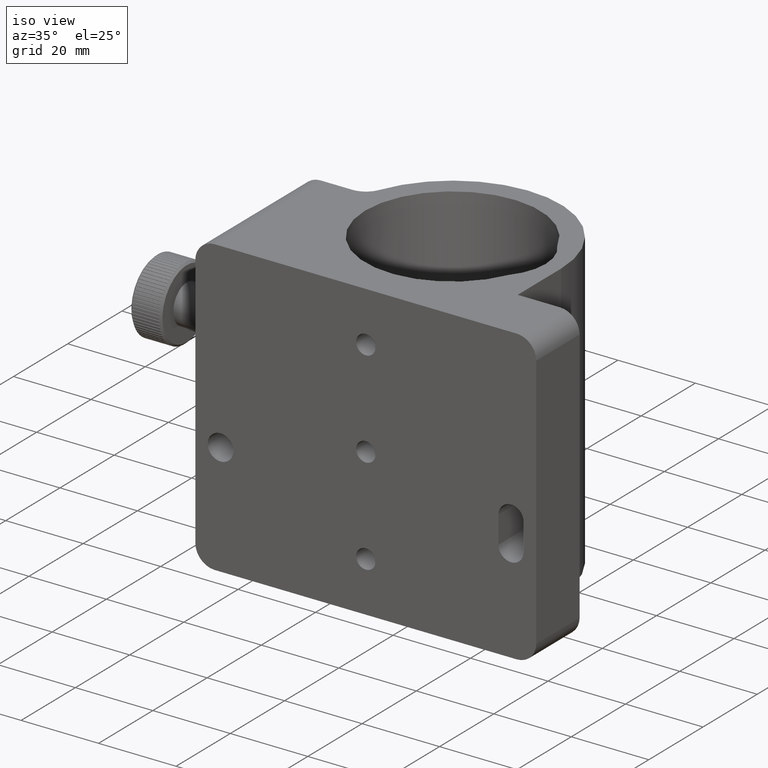
[diagram: clean part render]
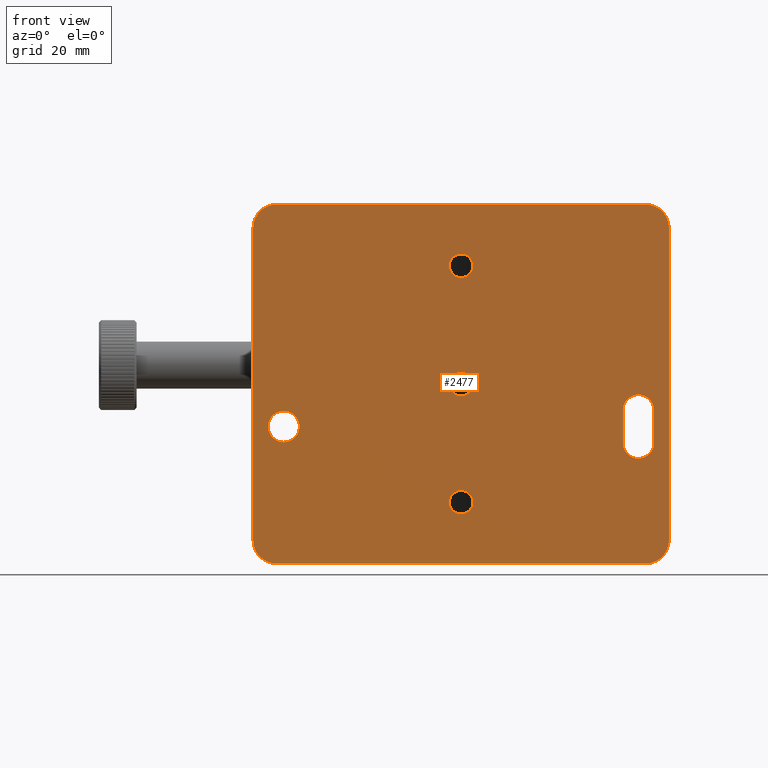
[diagram: tour spotlight — one face highlighted and labeled with its STEP entity id]
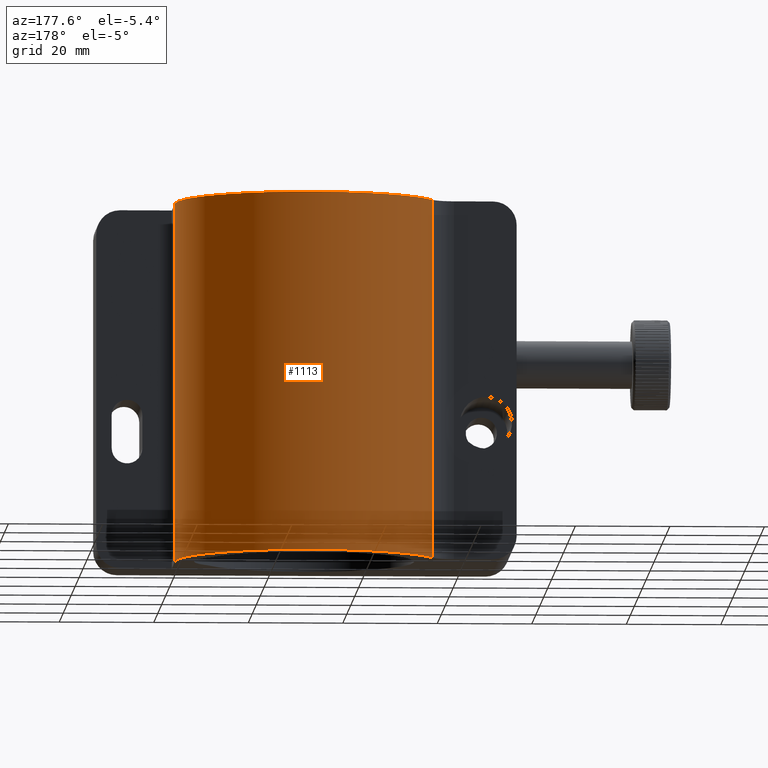
[diagram: tour spotlight — one face highlighted and labeled with its STEP entity id]
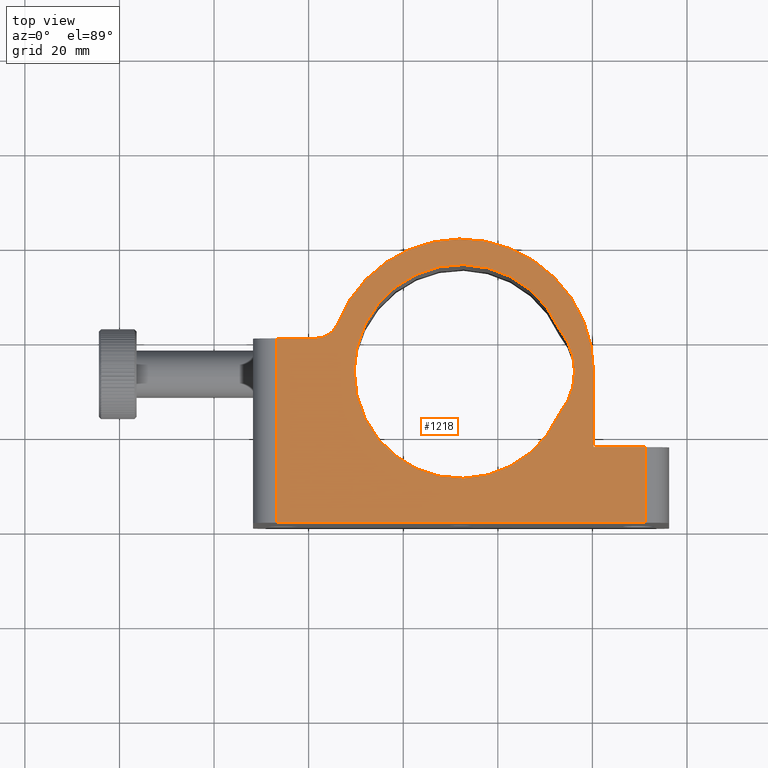
[diagram: tour spotlight — one face highlighted and labeled with its STEP entity id]
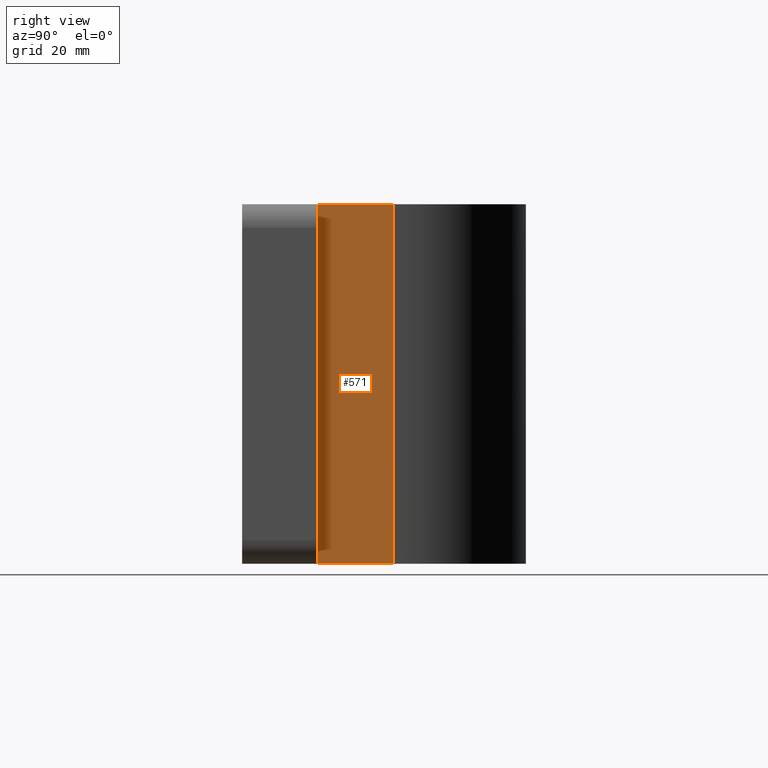
[diagram: tour spotlight — one face highlighted and labeled with its STEP entity id]
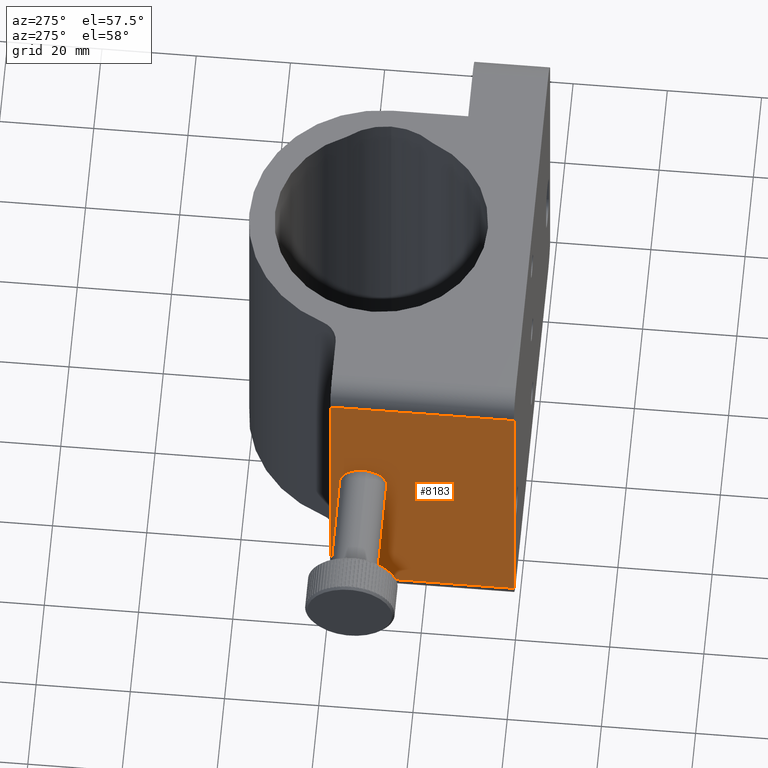
[diagram: tour spotlight — one face highlighted and labeled with its STEP entity id]
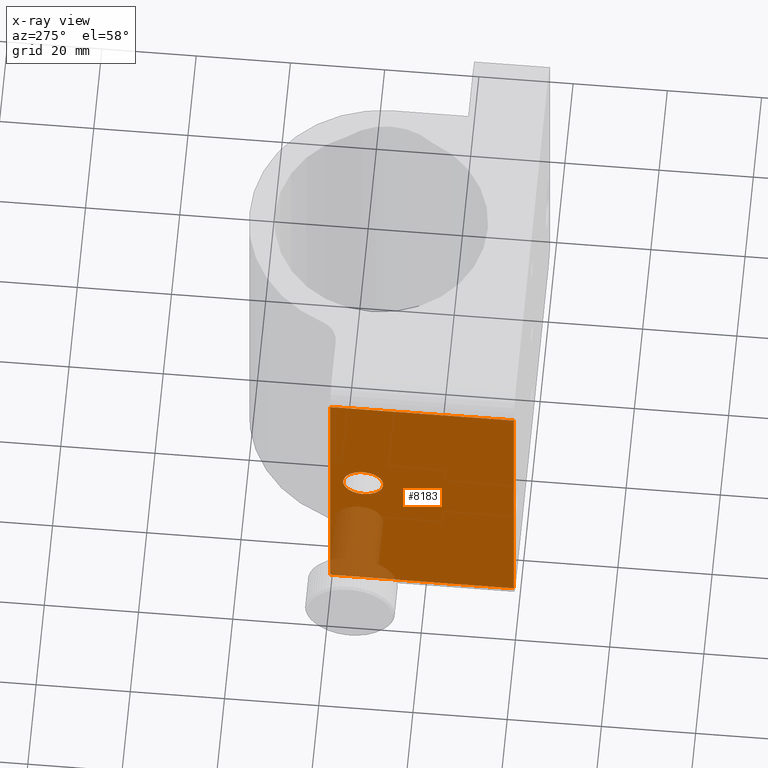
[diagram: x-ray of the same camera — body ghosted, this tour face saturated]
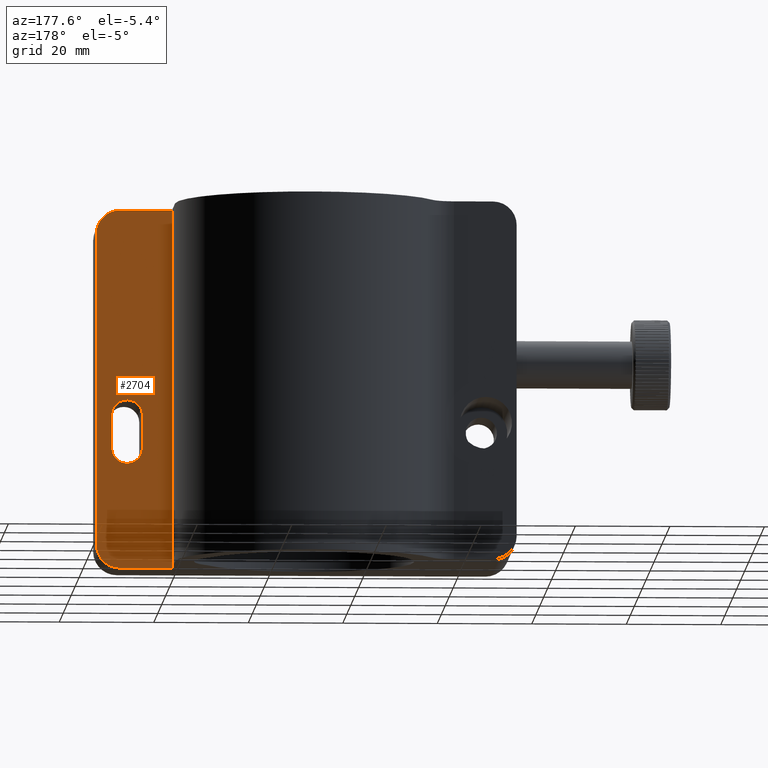
[diagram: tour spotlight — one face highlighted and labeled with its STEP entity id]
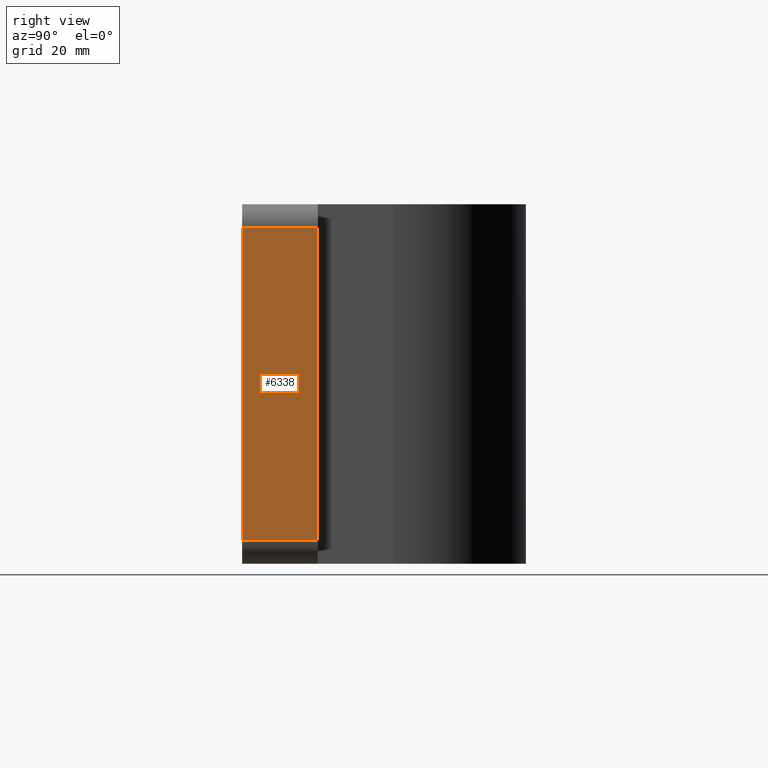
[diagram: tour spotlight — one face highlighted and labeled with its STEP entity id]
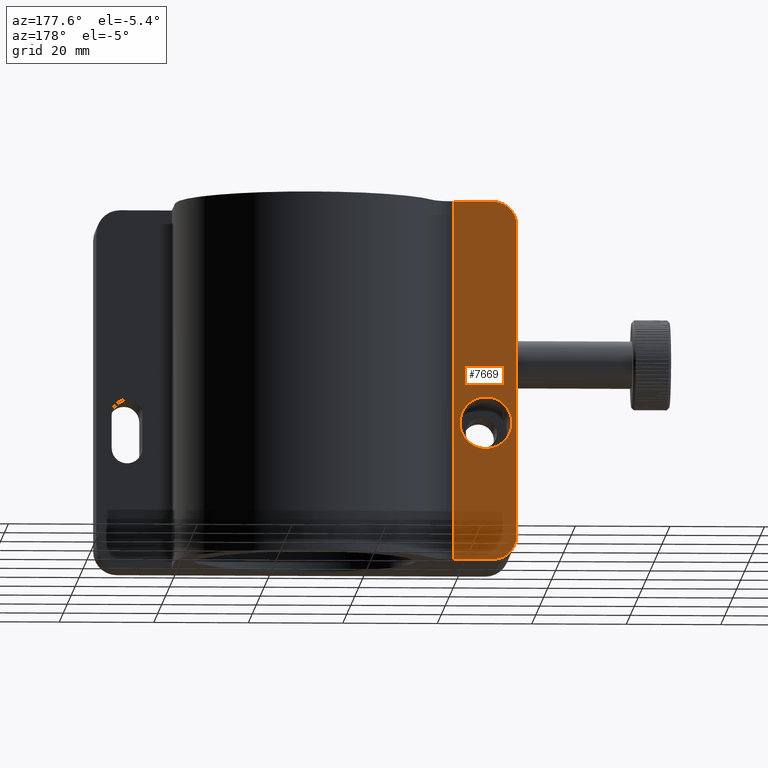
[diagram: tour spotlight — one face highlighted and labeled with its STEP entity id]
A machine part: a face-by-face anatomy tour. The part has 238 B-rep faces; the first image is the clean iso view, then the 8 largest visible faces are spotlighted one at a time (largest first), each with its STEP entity span.

Face 1 — front view, entity #2477. In plain terms, the highlighted planar face has unit normal (0, 1, -0).
Definition (entity closure, byte-faithful):
#1 = AXIS2_PLACEMENT_3D ( 'NONE', #7230, #7892, #8703 ) ;
#9 = EDGE_CURVE ( 'NONE', #5875, #9140, #8021, .T. ) ;
#13 = DIRECTION ( 'NONE',  ( 0.0000000000000000000, 1.000000000000000000, 0.0000000000000000000 ) ) ;
#120 = VERTEX_POINT ( 'NONE', #6336 ) ;
#123 = VECTOR ( 'NONE', #4115, 1000.000000000000000 ) ;
#133 = DIRECTION ( 'NONE',  ( 1.000000000000000000, -1.291895883200182400E-015, -0.0000000000000000000 ) ) ;
#151 = CIRCLE ( 'NONE', #7488, 5.000000000000000000 ) ;
#155 = ORIENTED_EDGE ( 'NONE', *, *, #5562, .F. ) ;
#196 = ORIENTED_EDGE ( 'NONE', *, *, #6700, .F. ) ;
#208 = CARTESIAN_POINT ( 'NONE',  ( 11.23092376484898700, -18.95986378845479700, -38.00000000000000000 ) ) ;
#333 = AXIS2_PLACEMENT_3D ( 'NONE', #8507, #2177, #1464 ) ;
#378 = LINE ( 'NONE', #2830, #7588 ) ;
#412 = ORIENTED_EDGE ( 'NONE', *, *, #3383, .T. ) ;
#431 = DIRECTION ( 'NONE',  ( 0.0000000000000000000, 0.0000000000000000000, -1.000000000000000000 ) ) ;
#478 = DIRECTION ( 'NONE',  ( -0.0000000000000000000, 1.000000000000000000, -0.0000000000000000000 ) ) ;
#502 = FACE_BOUND ( 'NONE', #6076, .T. ) ;
#548 = CARTESIAN_POINT ( 'NONE',  ( 16.23092376484898500, -18.95986378845480000, -38.00000000000000000 ) ) ;
#626 = ORIENTED_EDGE ( 'NONE', *, *, #7252, .T. ) ;
#656 = CARTESIAN_POINT ( 'NONE',  ( -27.76907623515101200, -18.95986378845474700, 2.499999999999999100 ) ) ;
#867 = DIRECTION ( 'NONE',  ( -0.0000000000000000000, -1.000000000000000000, -0.0000000000000000000 ) ) ;
#897 = ORIENTED_EDGE ( 'NONE', *, *, #8057, .F. ) ;
#917 = EDGE_CURVE ( 'NONE', #2626, #5854, #1349, .T. ) ;
#961 = AXIS2_PLACEMENT_3D ( 'NONE', #1890, #4672, #7515 ) ;
#964 = ORIENTED_EDGE ( 'NONE', *, *, #8224, .T. ) ;
#984 = ORIENTED_EDGE ( 'NONE', *, *, #6416, .T. ) ;
#1176 = VERTEX_POINT ( 'NONE', #4359 ) ;
#1237 = DIRECTION ( 'NONE',  ( -9.912705577010322600E-016, -0.0000000000000000000, -1.000000000000000000 ) ) ;
#1349 = CIRCLE ( 'NONE', #1573, 5.000000000000004400 ) ;
#1407 = ORIENTED_EDGE ( 'NONE', *, *, #5090, .F. ) ;
#1464 = DIRECTION ( 'NONE',  ( -1.000000000000000000, 1.291895883200182400E-015, 0.0000000000000000000 ) ) ;
#1466 = CARTESIAN_POINT ( 'NONE',  ( -27.76907623515101200, -18.95986378845474700, -27.50000000000000000 ) ) ;
#1475 = LINE ( 'NONE', #3725, #6007 ) ;
#1486 = EDGE_CURVE ( 'NONE', #3391, #4930, #8657, .T. ) ;
#1490 = CARTESIAN_POINT ( 'NONE',  ( 6.480923764848989200, -18.95986378845479000, -5.499999999999998200 ) ) ;
#1510 = DIRECTION ( 'NONE',  ( -1.000000000000000000, 1.387778780781445700E-015, 1.387778780781445700E-015 ) ) ;
#1526 = DIRECTION ( 'NONE',  ( 0.0000000000000000000, 0.0000000000000000000, -1.000000000000000000 ) ) ;
#1573 = AXIS2_PLACEMENT_3D ( 'NONE', #8287, #6903, #4069 ) ;
#1577 = EDGE_CURVE ( 'NONE', #2391, #3913, #4101, .T. ) ;
#1582 = DIRECTION ( 'NONE',  ( 0.0000000000000000000, 0.0000000000000000000, -1.000000000000000000 ) ) ;
#1588 = DIRECTION ( 'NONE',  ( -0.0000000000000000000, -0.0000000000000000000, -1.000000000000000000 ) ) ;
#1667 = VERTEX_POINT ( 'NONE', #1466 ) ;
#1685 = CARTESIAN_POINT ( 'NONE',  ( -65.26907623515117500, -18.95986378845513400, -5.700000000000010800 ) ) ;
#1686 = EDGE_CURVE ( 'NONE', #2626, #9140, #3451, .T. ) ;
#1710 = CIRCLE ( 'NONE', #6688, 2.499999999999998700 ) ;
#1717 = ORIENTED_EDGE ( 'NONE', *, *, #1577, .T. ) ;
#1729 = CARTESIAN_POINT ( 'NONE',  ( 12.98092376484898800, -18.95986378845513400, -12.50000000000000000 ) ) ;
#1826 = EDGE_CURVE ( 'NONE', #3711, #2135, #8558, .T. ) ;
#1890 = CARTESIAN_POINT ( 'NONE',  ( 9.730923764848984800, -18.95986378845513400, -12.50000000000000000 ) ) ;
#1936 = CARTESIAN_POINT ( 'NONE',  ( 11.23092376484898700, -18.95986378845479300, 33.00000000000000000 ) ) ;
#1946 = CARTESIAN_POINT ( 'NONE',  ( -65.26907623515117500, -18.95986378845513400, -9.000000000000001800 ) ) ;
#2027 = VERTEX_POINT ( 'NONE', #7579 ) ;
#2048 = DIRECTION ( 'NONE',  ( -1.291895883200182400E-015, -1.000000000000000000, 0.0000000000000000000 ) ) ;
#2135 = VERTEX_POINT ( 'NONE', #656 ) ;
#2154 = CARTESIAN_POINT ( 'NONE',  ( -27.76907623515101200, -18.95986378845474700, 27.50000000000000000 ) ) ;
#2177 = DIRECTION ( 'NONE',  ( 1.291895883200182400E-015, 1.000000000000000000, -0.0000000000000000000 ) ) ;
#2189 = CARTESIAN_POINT ( 'NONE',  ( -27.76907623515101200, -18.95986378845474700, 0.0000000000000000000 ) ) ;
#2258 = DIRECTION ( 'NONE',  ( 0.0000000000000000000, 0.0000000000000000000, 1.000000000000000000 ) ) ;
#2283 = AXIS2_PLACEMENT_3D ( 'NONE', #4397, #3053, #7942 ) ;
#2324 = CARTESIAN_POINT ( 'NONE',  ( -71.76907623515100500, -18.95986378845469000, 33.00000000000000000 ) ) ;
#2391 = VERTEX_POINT ( 'NONE', #6787 ) ;
#2396 = FACE_BOUND ( 'NONE', #5275, .T. ) ;
#2477 = ADVANCED_FACE ( 'NONE', ( #8258, #2396, #6395, #502, #3390, #8140 ), #6407, .F. ) ;
#2550 = CARTESIAN_POINT ( 'NONE',  ( 11.23092376484898700, -18.95986378845479700, 38.00000000000000000 ) ) ;
#2556 = DIRECTION ( 'NONE',  ( -1.291895883200182400E-015, -1.000000000000000000, 0.0000000000000000000 ) ) ;
#2596 = CIRCLE ( 'NONE', #7008, 3.250000000000002700 ) ;
#2626 = VERTEX_POINT ( 'NONE', #3530 ) ;
#2653 = DIRECTION ( 'NONE',  ( -1.000000000000000000, 1.387778780781445700E-015, 0.0000000000000000000 ) ) ;
#2830 = CARTESIAN_POINT ( 'NONE',  ( 12.98092376484898800, -18.95986378845513400, -12.50000000000000000 ) ) ;
#2883 = DIRECTION ( 'NONE',  ( 0.0000000000000000000, 0.0000000000000000000, -1.000000000000000000 ) ) ;
#2953 = ORIENTED_EDGE ( 'NONE', *, *, #9, .T. ) ;
#3025 = CARTESIAN_POINT ( 'NONE',  ( -27.76907623515101200, -18.95986378845474700, 25.00000000000000000 ) ) ;
#3053 = DIRECTION ( 'NONE',  ( -0.0000000000000000000, -1.000000000000000000, -0.0000000000000000000 ) ) ;
#3094 = CARTESIAN_POINT ( 'NONE',  ( -66.76907623515101900, -18.95986378845469700, -33.00000000000000700 ) ) ;
#3098 = EDGE_CURVE ( 'NONE', #1176, #1667, #1710, .T. ) ;
#3276 = DIRECTION ( 'NONE',  ( -0.0000000000000000000, -1.000000000000000000, -0.0000000000000000000 ) ) ;
#3278 = EDGE_LOOP ( 'NONE', ( #8931, #984, #626, #7777, #6661, #2953, #3755, #5025 ) ) ;
#3383 = EDGE_CURVE ( 'NONE', #4930, #120, #2596, .T. ) ;
#3390 = FACE_BOUND ( 'NONE', #6282, .T. ) ;
#3391 = VERTEX_POINT ( 'NONE', #8502 ) ;
#3401 = DIRECTION ( 'NONE',  ( 1.000000000000000000, -1.291895883200182400E-015, -0.0000000000000000000 ) ) ;
#3451 = LINE ( 'NONE', #8714, #4996 ) ;
#3491 = EDGE_CURVE ( 'NONE', #120, #8791, #4014, .T. ) ;
#3530 = CARTESIAN_POINT ( 'NONE',  ( -66.76907623515100500, -18.95986378845469400, 38.00000000000000000 ) ) ;
#3676 = DIRECTION ( 'NONE',  ( 0.0000000000000000000, 0.0000000000000000000, -1.000000000000000000 ) ) ;
#3711 = VERTEX_POINT ( 'NONE', #8389 ) ;
#3725 = CARTESIAN_POINT ( 'NONE',  ( 16.23092376484898500, -18.95986378845480000, 38.00000000000000000 ) ) ;
#3733 = AXIS2_PLACEMENT_3D ( 'NONE', #2189, #9175, #2883 ) ;
#3755 = ORIENTED_EDGE ( 'NONE', *, *, #1686, .F. ) ;
#3784 = CIRCLE ( 'NONE', #4439, 2.499999999999998700 ) ;
#3913 = VERTEX_POINT ( 'NONE', #1685 ) ;
#3938 = EDGE_LOOP ( 'NONE', ( #897, #196 ) ) ;
#4014 = CIRCLE ( 'NONE', #1, 3.250000000000002700 ) ;
#4069 = DIRECTION ( 'NONE',  ( -1.000000000000000000, 1.387778780781444500E-015, 1.387778780781444500E-015 ) ) ;
#4101 = CIRCLE ( 'NONE', #7955, 3.299999999999990500 ) ;
#4107 = VERTEX_POINT ( 'NONE', #1729 ) ;
#4114 = ORIENTED_EDGE ( 'NONE', *, *, #1486, .T. ) ;
#4115 = DIRECTION ( 'NONE',  ( 9.912705577010322600E-016, 0.0000000000000000000, 1.000000000000000000 ) ) ;
#4144 = CIRCLE ( 'NONE', #3733, 2.499999999999999100 ) ;
#4202 = CARTESIAN_POINT ( 'NONE',  ( 6.480923764848982100, -18.95986378845513400, -12.50000000000000000 ) ) ;
#4229 = CARTESIAN_POINT ( 'NONE',  ( 9.730923764848984800, -18.95986378845513400, -5.499999999999998200 ) ) ;
#4280 = VERTEX_POINT ( 'NONE', #2154 ) ;
#4315 = AXIS2_PLACEMENT_3D ( 'NONE', #7307, #8004, #1526 ) ;
#4359 = CARTESIAN_POINT ( 'NONE',  ( -27.76907623515101200, -18.95986378845474700, -22.50000000000000400 ) ) ;
#4397 = CARTESIAN_POINT ( 'NONE',  ( -27.76907623515101200, -18.95986378845474700, 0.0000000000000000000 ) ) ;
#4399 = AXIS2_PLACEMENT_3D ( 'NONE', #1946, #478, #8968 ) ;
#4439 = AXIS2_PLACEMENT_3D ( 'NONE', #3025, #5072, #3676 ) ;
#4477 = ORIENTED_EDGE ( 'NONE', *, *, #7203, .T. ) ;
#4641 = AXIS2_PLACEMENT_3D ( 'NONE', #3094, #8743, #7364 ) ;
#4672 = DIRECTION ( 'NONE',  ( 0.0000000000000000000, 1.000000000000000000, 0.0000000000000000000 ) ) ;
#4688 = CARTESIAN_POINT ( 'NONE',  ( 12.98092376484899500, -18.95986378845513400, -5.499999999999998200 ) ) ;
#4828 = EDGE_LOOP ( 'NONE', ( #1407, #5075 ) ) ;
#4845 = CARTESIAN_POINT ( 'NONE',  ( 11.23092376484898700, -18.95986378845479300, -33.00000000000000700 ) ) ;
#4930 = VERTEX_POINT ( 'NONE', #1490 ) ;
#4996 = VECTOR ( 'NONE', #133, 1000.000000000000000 ) ;
#5019 = CARTESIAN_POINT ( 'NONE',  ( 16.23092376484898500, -18.95986378845480000, 33.00000000000000000 ) ) ;
#5025 = ORIENTED_EDGE ( 'NONE', *, *, #917, .T. ) ;
#5072 = DIRECTION ( 'NONE',  ( -0.0000000000000000000, -1.000000000000000000, -0.0000000000000000000 ) ) ;
#5075 = ORIENTED_EDGE ( 'NONE', *, *, #3098, .F. ) ;
#5090 = EDGE_CURVE ( 'NONE', #1667, #1176, #6125, .T. ) ;
#5159 = VERTEX_POINT ( 'NONE', #8761 ) ;
#5245 = CIRCLE ( 'NONE', #4641, 5.000000000000004400 ) ;
#5275 = EDGE_LOOP ( 'NONE', ( #5716, #155 ) ) ;
#5282 = VERTEX_POINT ( 'NONE', #6160 ) ;
#5478 = VECTOR ( 'NONE', #8350, 1000.000000000000000 ) ;
#5562 = EDGE_CURVE ( 'NONE', #2135, #3711, #4144, .T. ) ;
#5673 = DIRECTION ( 'NONE',  ( 0.0000000000000000000, 0.0000000000000000000, 1.000000000000000000 ) ) ;
#5716 = ORIENTED_EDGE ( 'NONE', *, *, #1826, .F. ) ;
#5743 = CARTESIAN_POINT ( 'NONE',  ( -65.26907623515117500, -18.95986378845513400, -9.000000000000001800 ) ) ;
#5807 = LINE ( 'NONE', #548, #8227 ) ;
#5854 = VERTEX_POINT ( 'NONE', #2324 ) ;
#5875 = VERTEX_POINT ( 'NONE', #5019 ) ;
#6007 = VECTOR ( 'NONE', #1588, 1000.000000000000000 ) ;
#6076 = EDGE_LOOP ( 'NONE', ( #8840, #964, #4114, #412, #7724 ) ) ;
#6125 = CIRCLE ( 'NONE', #4315, 2.499999999999998700 ) ;
#6160 = CARTESIAN_POINT ( 'NONE',  ( -66.76907623515100500, -18.95986378845469400, -38.00000000000000000 ) ) ;
#6168 = EDGE_CURVE ( 'NONE', #8791, #4107, #378, .T. ) ;
#6282 = EDGE_LOOP ( 'NONE', ( #4477, #1717 ) ) ;
#6336 = CARTESIAN_POINT ( 'NONE',  ( 9.730923764848984800, -18.95986378845513400, -2.249999999999995100 ) ) ;
#6388 = AXIS2_PLACEMENT_3D ( 'NONE', #1936, #2556, #2653 ) ;
#6395 = FACE_BOUND ( 'NONE', #4828, .T. ) ;
#6407 = PLANE ( 'NONE',  #333 ) ;
#6416 = EDGE_CURVE ( 'NONE', #2027, #5282, #5245, .T. ) ;
#6595 = CIRCLE ( 'NONE', #8694, 2.499999999999998700 ) ;
#6661 = ORIENTED_EDGE ( 'NONE', *, *, #9023, .F. ) ;
#6688 = AXIS2_PLACEMENT_3D ( 'NONE', #6912, #3276, #431 ) ;
#6700 = EDGE_CURVE ( 'NONE', #4280, #5159, #6595, .T. ) ;
#6787 = CARTESIAN_POINT ( 'NONE',  ( -65.26907623515117500, -18.95986378845513400, -12.29999999999999200 ) ) ;
#6900 = EDGE_CURVE ( 'NONE', #5854, #2027, #7580, .T. ) ;
#6903 = DIRECTION ( 'NONE',  ( -1.291895883200182400E-015, -1.000000000000000000, 0.0000000000000000000 ) ) ;
#6912 = CARTESIAN_POINT ( 'NONE',  ( -27.76907623515101200, -18.95986378845474700, -25.00000000000000000 ) ) ;
#7008 = AXIS2_PLACEMENT_3D ( 'NONE', #4229, #13, #5673 ) ;
#7041 = CIRCLE ( 'NONE', #4399, 3.299999999999990500 ) ;
#7150 = CIRCLE ( 'NONE', #961, 3.250000000000002700 ) ;
#7203 = EDGE_CURVE ( 'NONE', #3913, #2391, #7041, .T. ) ;
#7230 = CARTESIAN_POINT ( 'NONE',  ( 9.730923764848984800, -18.95986378845513400, -5.499999999999998200 ) ) ;
#7252 = EDGE_CURVE ( 'NONE', #5282, #8008, #5807, .T. ) ;
#7307 = CARTESIAN_POINT ( 'NONE',  ( -27.76907623515101200, -18.95986378845474700, -25.00000000000000000 ) ) ;
#7364 = DIRECTION ( 'NONE',  ( -1.000000000000000000, 1.387778780781444500E-015, 0.0000000000000000000 ) ) ;
#7369 = EDGE_CURVE ( 'NONE', #8008, #8047, #151, .T. ) ;
#7488 = AXIS2_PLACEMENT_3D ( 'NONE', #4845, #2048, #1510 ) ;
#7515 = DIRECTION ( 'NONE',  ( 0.0000000000000000000, 0.0000000000000000000, 1.000000000000000000 ) ) ;
#7579 = CARTESIAN_POINT ( 'NONE',  ( -71.76907623515100500, -18.95986378845469000, -33.00000000000000700 ) ) ;
#7580 = LINE ( 'NONE', #9136, #5478 ) ;
#7588 = VECTOR ( 'NONE', #1237, 1000.000000000000000 ) ;
#7724 = ORIENTED_EDGE ( 'NONE', *, *, #3491, .T. ) ;
#7777 = ORIENTED_EDGE ( 'NONE', *, *, #7369, .T. ) ;
#7890 = CARTESIAN_POINT ( 'NONE',  ( -27.76907623515101200, -18.95986378845474700, 25.00000000000000000 ) ) ;
#7892 = DIRECTION ( 'NONE',  ( 0.0000000000000000000, 1.000000000000000000, 0.0000000000000000000 ) ) ;
#7942 = DIRECTION ( 'NONE',  ( 0.0000000000000000000, 0.0000000000000000000, -1.000000000000000000 ) ) ;
#7955 = AXIS2_PLACEMENT_3D ( 'NONE', #5743, #8593, #2258 ) ;
#8004 = DIRECTION ( 'NONE',  ( -0.0000000000000000000, -1.000000000000000000, -0.0000000000000000000 ) ) ;
#8006 = CARTESIAN_POINT ( 'NONE',  ( 16.23092376484898500, -18.95986378845480000, -33.00000000000000700 ) ) ;
#8008 = VERTEX_POINT ( 'NONE', #208 ) ;
#8021 = CIRCLE ( 'NONE', #6388, 5.000000000000000000 ) ;
#8047 = VERTEX_POINT ( 'NONE', #8006 ) ;
#8057 = EDGE_CURVE ( 'NONE', #5159, #4280, #3784, .T. ) ;
#8140 = FACE_OUTER_BOUND ( 'NONE', #3278, .T. ) ;
#8224 = EDGE_CURVE ( 'NONE', #4107, #3391, #7150, .T. ) ;
#8227 = VECTOR ( 'NONE', #3401, 1000.000000000000000 ) ;
#8258 = FACE_BOUND ( 'NONE', #3938, .T. ) ;
#8287 = CARTESIAN_POINT ( 'NONE',  ( -66.76907623515101900, -18.95986378845469700, 33.00000000000000000 ) ) ;
#8350 = DIRECTION ( 'NONE',  ( -0.0000000000000000000, -0.0000000000000000000, -1.000000000000000000 ) ) ;
#8389 = CARTESIAN_POINT ( 'NONE',  ( -27.76907623515101200, -18.95986378845474700, -2.499999999999999100 ) ) ;
#8502 = CARTESIAN_POINT ( 'NONE',  ( 6.480923764848982100, -18.95986378845513400, -12.50000000000000000 ) ) ;
#8507 = CARTESIAN_POINT ( 'NONE',  ( 16.23092376484898500, -18.95986378845480000, 38.00000000000000000 ) ) ;
#8558 = CIRCLE ( 'NONE', #2283, 2.499999999999999100 ) ;
#8593 = DIRECTION ( 'NONE',  ( -0.0000000000000000000, 1.000000000000000000, -0.0000000000000000000 ) ) ;
#8657 = LINE ( 'NONE', #4202, #123 ) ;
#8694 = AXIS2_PLACEMENT_3D ( 'NONE', #7890, #867, #1582 ) ;
#8703 = DIRECTION ( 'NONE',  ( 0.0000000000000000000, 0.0000000000000000000, 1.000000000000000000 ) ) ;
#8714 = CARTESIAN_POINT ( 'NONE',  ( 16.23092376484898500, -18.95986378845480000, 38.00000000000000000 ) ) ;
#8743 = DIRECTION ( 'NONE',  ( -1.291895883200182400E-015, -1.000000000000000000, 0.0000000000000000000 ) ) ;
#8761 = CARTESIAN_POINT ( 'NONE',  ( -27.76907623515101200, -18.95986378845474700, 22.50000000000000400 ) ) ;
#8791 = VERTEX_POINT ( 'NONE', #4688 ) ;
#8840 = ORIENTED_EDGE ( 'NONE', *, *, #6168, .T. ) ;
#8931 = ORIENTED_EDGE ( 'NONE', *, *, #6900, .T. ) ;
#8968 = DIRECTION ( 'NONE',  ( 0.0000000000000000000, 0.0000000000000000000, 1.000000000000000000 ) ) ;
#9023 = EDGE_CURVE ( 'NONE', #5875, #8047, #1475, .T. ) ;
#9136 = CARTESIAN_POINT ( 'NONE',  ( -71.76907623515100500, -18.95986378845469000, 38.00000000000000000 ) ) ;
#9140 = VERTEX_POINT ( 'NONE', #2550 ) ;
#9175 = DIRECTION ( 'NONE',  ( -0.0000000000000000000, -1.000000000000000000, -0.0000000000000000000 ) ) ;

Face 2 — auxiliary view, entity #1113. In plain terms, the highlighted cylindrical surface (partial cylindrical patch) has radius 28 mm, axis along (-0, -0, -1).
Definition (entity closure, byte-faithful):
#221 = DIRECTION ( 'NONE',  ( -0.0000000000000000000, -0.0000000000000000000, -1.000000000000000000 ) ) ;
#463 = CARTESIAN_POINT ( 'NONE',  ( 0.2309237648489871600, 13.04013621154520000, 38.00000000000000000 ) ) ;
#684 = FACE_OUTER_BOUND ( 'NONE', #1820, .T. ) ;
#1113 = ADVANCED_FACE ( 'NONE', ( #684 ), #5670, .T. ) ;
#1211 = DIRECTION ( 'NONE',  ( 0.0000000000000000000, 0.0000000000000000000, 1.000000000000000000 ) ) ;
#1378 = EDGE_CURVE ( 'NONE', #7614, #8425, #2024, .T. ) ;
#1400 = AXIS2_PLACEMENT_3D ( 'NONE', #8748, #4472, #5918 ) ;
#1820 = EDGE_LOOP ( 'NONE', ( #4950, #6913, #8078, #2821 ) ) ;
#2024 = LINE ( 'NONE', #7555, #6226 ) ;
#2421 = VERTEX_POINT ( 'NONE', #463 ) ;
#2821 = ORIENTED_EDGE ( 'NONE', *, *, #8658, .T. ) ;
#3308 = CARTESIAN_POINT ( 'NONE',  ( 0.2309237648489871600, 13.04013621154520000, -38.00000000000000000 ) ) ;
#3977 = DIRECTION ( 'NONE',  ( 0.0000000000000000000, 0.0000000000000000000, 1.000000000000000000 ) ) ;
#4472 = DIRECTION ( 'NONE',  ( 0.0000000000000000000, 0.0000000000000000000, 1.000000000000000000 ) ) ;
#4552 = CIRCLE ( 'NONE', #6647, 28.00000000000000000 ) ;
#4569 = CARTESIAN_POINT ( 'NONE',  ( 0.2309237648489871600, 13.04013621154520000, 38.00000000000000000 ) ) ;
#4718 = EDGE_CURVE ( 'NONE', #2421, #8425, #4552, .T. ) ;
#4950 = ORIENTED_EDGE ( 'NONE', *, *, #5981, .T. ) ;
#5470 = CARTESIAN_POINT ( 'NONE',  ( -53.85222363941175400, 23.22195439336351800, 38.00000000000000000 ) ) ;
#5587 = AXIS2_PLACEMENT_3D ( 'NONE', #6497, #5721, #5775 ) ;
#5670 = CYLINDRICAL_SURFACE ( 'NONE', #5587, 27.99999999999999600 ) ;
#5721 = DIRECTION ( 'NONE',  ( -0.0000000000000000000, -0.0000000000000000000, -1.000000000000000000 ) ) ;
#5775 = DIRECTION ( 'NONE',  ( -1.000000000000000000, 0.0000000000000000000, 0.0000000000000000000 ) ) ;
#5918 = DIRECTION ( 'NONE',  ( 1.000000000000000000, 0.0000000000000000000, 0.0000000000000000000 ) ) ;
#5981 = EDGE_CURVE ( 'NONE', #8280, #7614, #8134, .T. ) ;
#6226 = VECTOR ( 'NONE', #1211, 1000.000000000000000 ) ;
#6256 = VECTOR ( 'NONE', #221, 1000.000000000000000 ) ;
#6497 = CARTESIAN_POINT ( 'NONE',  ( -27.76907623515101200, 13.04013621154520000, 38.00000000000000000 ) ) ;
#6647 = AXIS2_PLACEMENT_3D ( 'NONE', #8143, #3977, #8863 ) ;
#6740 = CARTESIAN_POINT ( 'NONE',  ( -53.85222363941175400, 23.22195439336351800, -38.00000000000000000 ) ) ;
#6913 = ORIENTED_EDGE ( 'NONE', *, *, #1378, .T. ) ;
#7555 = CARTESIAN_POINT ( 'NONE',  ( -53.85222363941175400, 23.22195439336351800, 38.00000000000000000 ) ) ;
#7614 = VERTEX_POINT ( 'NONE', #6740 ) ;
#8078 = ORIENTED_EDGE ( 'NONE', *, *, #4718, .F. ) ;
#8134 = CIRCLE ( 'NONE', #1400, 28.00000000000000000 ) ;
#8143 = CARTESIAN_POINT ( 'NONE',  ( -27.76907623515101200, 13.04013621154520000, 38.00000000000000000 ) ) ;
#8280 = VERTEX_POINT ( 'NONE', #3308 ) ;
#8344 = LINE ( 'NONE', #4569, #6256 ) ;
#8425 = VERTEX_POINT ( 'NONE', #5470 ) ;
#8658 = EDGE_CURVE ( 'NONE', #2421, #8280, #8344, .T. ) ;
#8748 = CARTESIAN_POINT ( 'NONE',  ( -27.76907623515101200, 13.04013621154520000, -38.00000000000000000 ) ) ;
#8863 = DIRECTION ( 'NONE',  ( 1.000000000000000000, 0.0000000000000000000, 0.0000000000000000000 ) ) ;

Face 3 — top view, entity #1218. In plain terms, the highlighted planar face has unit normal (0, 0, 1).
Definition (entity closure, byte-faithful):
#5 = CARTESIAN_POINT ( 'NONE',  ( -66.76907623515101900, -18.95986378845469000, 38.00000000000000000 ) ) ;
#133 = DIRECTION ( 'NONE',  ( 1.000000000000000000, -1.291895883200182400E-015, -0.0000000000000000000 ) ) ;
#161 = DIRECTION ( 'NONE',  ( -1.000000000000000000, -4.108500212226867900E-015, 0.0000000000000000000 ) ) ;
#166 = VECTOR ( 'NONE', #4717, 1000.000000000000000 ) ;
#259 = CIRCLE ( 'NONE', #7821, 22.59999999999999800 ) ;
#463 = CARTESIAN_POINT ( 'NONE',  ( 0.2309237648489871600, 13.04013621154520000, 38.00000000000000000 ) ) ;
#712 = DIRECTION ( 'NONE',  ( 0.0000000000000000000, -1.000000000000000000, 0.0000000000000000000 ) ) ;
#885 = VERTEX_POINT ( 'NONE', #6867 ) ;
#954 = CARTESIAN_POINT ( 'NONE',  ( 16.23092376484898500, -2.959863788454801400, 38.00000000000000000 ) ) ;
#962 = DIRECTION ( 'NONE',  ( 1.000000000000000000, 0.0000000000000000000, 0.0000000000000000000 ) ) ;
#1218 = ADVANCED_FACE ( 'NONE', ( #6240, #5785 ), #2327, .T. ) ;
#1322 = DIRECTION ( 'NONE',  ( 1.000000000000000000, 0.0000000000000000000, 0.0000000000000000000 ) ) ;
#1515 = CIRCLE ( 'NONE', #6764, 13.99999999999999800 ) ;
#1686 = EDGE_CURVE ( 'NONE', #2626, #9140, #3451, .T. ) ;
#1698 = DIRECTION ( 'NONE',  ( -1.000000000000000000, 0.0000000000000000000, 0.0000000000000000000 ) ) ;
#1895 = VERTEX_POINT ( 'NONE', #5932 ) ;
#2008 = CARTESIAN_POINT ( 'NONE',  ( -3.769076235151013000, 13.04013621154520000, 38.00000000000000000 ) ) ;
#2076 = VECTOR ( 'NONE', #161, 1000.000000000000000 ) ;
#2111 = DIRECTION ( 'NONE',  ( 0.0000000000000000000, 0.0000000000000000000, 1.000000000000000000 ) ) ;
#2117 = EDGE_LOOP ( 'NONE', ( #6181, #6165, #4268, #6172, #6818, #6064, #3648, #2940 ) ) ;
#2131 = EDGE_LOOP ( 'NONE', ( #2635, #5408, #9061 ) ) ;
#2287 = LINE ( 'NONE', #954, #2492 ) ;
#2296 = DIRECTION ( 'NONE',  ( 0.0000000000000000000, 0.0000000000000000000, 1.000000000000000000 ) ) ;
#2327 = PLANE ( 'NONE',  #5410 ) ;
#2421 = VERTEX_POINT ( 'NONE', #463 ) ;
#2492 = VECTOR ( 'NONE', #1698, 1000.000000000000000 ) ;
#2550 = CARTESIAN_POINT ( 'NONE',  ( 11.23092376484898700, -18.95986378845479700, 38.00000000000000000 ) ) ;
#2558 = EDGE_CURVE ( 'NONE', #1895, #3257, #7820, .T. ) ;
#2626 = VERTEX_POINT ( 'NONE', #3530 ) ;
#2635 = ORIENTED_EDGE ( 'NONE', *, *, #2558, .F. ) ;
#2763 = VERTEX_POINT ( 'NONE', #5436 ) ;
#2846 = EDGE_CURVE ( 'NONE', #9140, #885, #3914, .T. ) ;
#2940 = ORIENTED_EDGE ( 'NONE', *, *, #4780, .T. ) ;
#3257 = VERTEX_POINT ( 'NONE', #2008 ) ;
#3314 = EDGE_CURVE ( 'NONE', #6599, #1895, #259, .T. ) ;
#3316 = AXIS2_PLACEMENT_3D ( 'NONE', #4507, #5198, #962 ) ;
#3367 = AXIS2_PLACEMENT_3D ( 'NONE', #7960, #7699, #1322 ) ;
#3444 = DIRECTION ( 'NONE',  ( -0.0000000000000000000, 1.000000000000000000, -0.0000000000000000000 ) ) ;
#3451 = LINE ( 'NONE', #8714, #4996 ) ;
#3500 = VECTOR ( 'NONE', #712, 1000.000000000000000 ) ;
#3530 = CARTESIAN_POINT ( 'NONE',  ( -66.76907623515100500, -18.95986378845469400, 38.00000000000000000 ) ) ;
#3648 = ORIENTED_EDGE ( 'NONE', *, *, #3661, .T. ) ;
#3661 = EDGE_CURVE ( 'NONE', #885, #2763, #2287, .T. ) ;
#3914 = LINE ( 'NONE', #6229, #166 ) ;
#3977 = DIRECTION ( 'NONE',  ( 0.0000000000000000000, 0.0000000000000000000, 1.000000000000000000 ) ) ;
#4175 = CARTESIAN_POINT ( 'NONE',  ( -27.76907623515101200, 13.04013621154520000, 38.00000000000000000 ) ) ;
#4268 = ORIENTED_EDGE ( 'NONE', *, *, #5878, .T. ) ;
#4328 = CARTESIAN_POINT ( 'NONE',  ( -54.87995965860288500, 20.04013621154537700, 38.00000000000000000 ) ) ;
#4507 = CARTESIAN_POINT ( 'NONE',  ( -58.50992853302975000, 25.04013621154536300, 38.00000000000000000 ) ) ;
#4527 = VERTEX_POINT ( 'NONE', #7567 ) ;
#4548 = EDGE_CURVE ( 'NONE', #8425, #4527, #7565, .T. ) ;
#4552 = CIRCLE ( 'NONE', #6647, 28.00000000000000000 ) ;
#4717 = DIRECTION ( 'NONE',  ( 0.0000000000000000000, 1.000000000000000000, -0.0000000000000000000 ) ) ;
#4718 = EDGE_CURVE ( 'NONE', #2421, #8425, #4552, .T. ) ;
#4780 = EDGE_CURVE ( 'NONE', #2763, #2421, #5236, .T. ) ;
#4995 = CARTESIAN_POINT ( 'NONE',  ( -27.76907623515101200, 13.04013621154520000, 38.00000000000000000 ) ) ;
#4996 = VECTOR ( 'NONE', #133, 1000.000000000000000 ) ;
#5198 = DIRECTION ( 'NONE',  ( -0.0000000000000000000, -0.0000000000000000000, -1.000000000000000000 ) ) ;
#5236 = LINE ( 'NONE', #5547, #8573 ) ;
#5408 = ORIENTED_EDGE ( 'NONE', *, *, #3314, .F. ) ;
#5410 = AXIS2_PLACEMENT_3D ( 'NONE', #4995, #2296, #6586 ) ;
#5436 = CARTESIAN_POINT ( 'NONE',  ( 0.2309237648489871600, -2.959863788454801400, 38.00000000000000000 ) ) ;
#5470 = CARTESIAN_POINT ( 'NONE',  ( -53.85222363941175400, 23.22195439336351800, 38.00000000000000000 ) ) ;
#5547 = CARTESIAN_POINT ( 'NONE',  ( 0.2309237648489871600, 13.04013621154520000, 38.00000000000000000 ) ) ;
#5576 = EDGE_CURVE ( 'NONE', #7708, #2626, #9153, .T. ) ;
#5640 = EDGE_CURVE ( 'NONE', #3257, #6599, #1515, .T. ) ;
#5785 = FACE_OUTER_BOUND ( 'NONE', #2117, .T. ) ;
#5878 = EDGE_CURVE ( 'NONE', #4527, #7708, #7920, .T. ) ;
#5932 = CARTESIAN_POINT ( 'NONE',  ( -7.031076235151017400, 4.057076821782710700, 38.00000000000000000 ) ) ;
#6064 = ORIENTED_EDGE ( 'NONE', *, *, #2846, .T. ) ;
#6165 = ORIENTED_EDGE ( 'NONE', *, *, #4548, .T. ) ;
#6172 = ORIENTED_EDGE ( 'NONE', *, *, #5576, .T. ) ;
#6181 = ORIENTED_EDGE ( 'NONE', *, *, #4718, .T. ) ;
#6229 = CARTESIAN_POINT ( 'NONE',  ( 11.23092376484898700, -2.959863788454801400, 38.00000000000000000 ) ) ;
#6240 = FACE_BOUND ( 'NONE', #2131, .T. ) ;
#6253 = DIRECTION ( 'NONE',  ( 0.0000000000000000000, 0.0000000000000000000, 1.000000000000000000 ) ) ;
#6586 = DIRECTION ( 'NONE',  ( 1.000000000000000000, 0.0000000000000000000, -0.0000000000000000000 ) ) ;
#6599 = VERTEX_POINT ( 'NONE', #7121 ) ;
#6647 = AXIS2_PLACEMENT_3D ( 'NONE', #8143, #3977, #8863 ) ;
#6764 = AXIS2_PLACEMENT_3D ( 'NONE', #6863, #6253, #8993 ) ;
#6818 = ORIENTED_EDGE ( 'NONE', *, *, #1686, .T. ) ;
#6863 = CARTESIAN_POINT ( 'NONE',  ( -17.76907623515101200, 13.04013621154520000, 38.00000000000000000 ) ) ;
#6867 = CARTESIAN_POINT ( 'NONE',  ( 11.23092376484898700, -2.959863788454801400, 38.00000000000000000 ) ) ;
#7121 = CARTESIAN_POINT ( 'NONE',  ( -7.031076235151010300, 22.02319560130768000, 38.00000000000000000 ) ) ;
#7565 = CIRCLE ( 'NONE', #3316, 4.999999999999997300 ) ;
#7567 = CARTESIAN_POINT ( 'NONE',  ( -58.50992853302972200, 20.04013621154536300, 38.00000000000000000 ) ) ;
#7683 = CARTESIAN_POINT ( 'NONE',  ( -66.76907623515101900, 20.04013621154533100, 38.00000000000000000 ) ) ;
#7699 = DIRECTION ( 'NONE',  ( 0.0000000000000000000, 0.0000000000000000000, 1.000000000000000000 ) ) ;
#7708 = VERTEX_POINT ( 'NONE', #7683 ) ;
#7820 = CIRCLE ( 'NONE', #3367, 13.99999999999999800 ) ;
#7821 = AXIS2_PLACEMENT_3D ( 'NONE', #4175, #2111, #9149 ) ;
#7920 = LINE ( 'NONE', #4328, #2076 ) ;
#7960 = CARTESIAN_POINT ( 'NONE',  ( -17.76907623515101200, 13.04013621154520000, 38.00000000000000000 ) ) ;
#8143 = CARTESIAN_POINT ( 'NONE',  ( -27.76907623515101200, 13.04013621154520000, 38.00000000000000000 ) ) ;
#8425 = VERTEX_POINT ( 'NONE', #5470 ) ;
#8573 = VECTOR ( 'NONE', #3444, 1000.000000000000000 ) ;
#8714 = CARTESIAN_POINT ( 'NONE',  ( 16.23092376484898500, -18.95986378845480000, 38.00000000000000000 ) ) ;
#8863 = DIRECTION ( 'NONE',  ( 1.000000000000000000, 0.0000000000000000000, 0.0000000000000000000 ) ) ;
#8993 = DIRECTION ( 'NONE',  ( 1.000000000000000000, 0.0000000000000000000, 0.0000000000000000000 ) ) ;
#9061 = ORIENTED_EDGE ( 'NONE', *, *, #5640, .F. ) ;
#9140 = VERTEX_POINT ( 'NONE', #2550 ) ;
#9149 = DIRECTION ( 'NONE',  ( 1.000000000000000000, 0.0000000000000000000, 0.0000000000000000000 ) ) ;
#9153 = LINE ( 'NONE', #5, #3500 ) ;

Face 4 — right view, entity #571. In plain terms, the highlighted planar face has unit normal (-1, 0, 0).
Definition (entity closure, byte-faithful):
#221 = DIRECTION ( 'NONE',  ( -0.0000000000000000000, -0.0000000000000000000, -1.000000000000000000 ) ) ;
#463 = CARTESIAN_POINT ( 'NONE',  ( 0.2309237648489871600, 13.04013621154520000, 38.00000000000000000 ) ) ;
#571 = ADVANCED_FACE ( 'NONE', ( #8833 ), #2563, .F. ) ;
#909 = DIRECTION ( 'NONE',  ( -0.0000000000000000000, 1.000000000000000000, -0.0000000000000000000 ) ) ;
#1029 = VECTOR ( 'NONE', #909, 1000.000000000000000 ) ;
#1390 = ORIENTED_EDGE ( 'NONE', *, *, #3892, .T. ) ;
#2421 = VERTEX_POINT ( 'NONE', #463 ) ;
#2563 = PLANE ( 'NONE',  #6989 ) ;
#2763 = VERTEX_POINT ( 'NONE', #5436 ) ;
#2970 = ORIENTED_EDGE ( 'NONE', *, *, #4780, .F. ) ;
#3253 = VECTOR ( 'NONE', #4915, 1000.000000000000000 ) ;
#3308 = CARTESIAN_POINT ( 'NONE',  ( 0.2309237648489871600, 13.04013621154520000, -38.00000000000000000 ) ) ;
#3346 = EDGE_CURVE ( 'NONE', #2763, #6852, #7258, .T. ) ;
#3444 = DIRECTION ( 'NONE',  ( -0.0000000000000000000, 1.000000000000000000, -0.0000000000000000000 ) ) ;
#3866 = ORIENTED_EDGE ( 'NONE', *, *, #8658, .F. ) ;
#3892 = EDGE_CURVE ( 'NONE', #6852, #8280, #7156, .T. ) ;
#3991 = DIRECTION ( 'NONE',  ( -1.000000000000000000, 0.0000000000000000000, 0.0000000000000000000 ) ) ;
#4128 = CARTESIAN_POINT ( 'NONE',  ( 0.2309237648489871600, -2.959863788454801400, -38.00000000000000000 ) ) ;
#4550 = DIRECTION ( 'NONE',  ( 0.0000000000000000000, 0.0000000000000000000, 1.000000000000000000 ) ) ;
#4569 = CARTESIAN_POINT ( 'NONE',  ( 0.2309237648489871600, 13.04013621154520000, 38.00000000000000000 ) ) ;
#4780 = EDGE_CURVE ( 'NONE', #2763, #2421, #5236, .T. ) ;
#4915 = DIRECTION ( 'NONE',  ( -0.0000000000000000000, -0.0000000000000000000, -1.000000000000000000 ) ) ;
#5236 = LINE ( 'NONE', #5547, #8573 ) ;
#5436 = CARTESIAN_POINT ( 'NONE',  ( 0.2309237648489871600, -2.959863788454801400, 38.00000000000000000 ) ) ;
#5547 = CARTESIAN_POINT ( 'NONE',  ( 0.2309237648489871600, 13.04013621154520000, 38.00000000000000000 ) ) ;
#6256 = VECTOR ( 'NONE', #221, 1000.000000000000000 ) ;
#6673 = CARTESIAN_POINT ( 'NONE',  ( 0.2309237648489871600, 13.04013621154520000, -38.00000000000000000 ) ) ;
#6836 = CARTESIAN_POINT ( 'NONE',  ( 0.2309237648489871600, 13.04013621154520000, 38.00000000000000000 ) ) ;
#6852 = VERTEX_POINT ( 'NONE', #4128 ) ;
#6951 = ORIENTED_EDGE ( 'NONE', *, *, #3346, .T. ) ;
#6989 = AXIS2_PLACEMENT_3D ( 'NONE', #6836, #3991, #4550 ) ;
#7156 = LINE ( 'NONE', #6673, #1029 ) ;
#7258 = LINE ( 'NONE', #7845, #3253 ) ;
#7311 = EDGE_LOOP ( 'NONE', ( #1390, #3866, #2970, #6951 ) ) ;
#7845 = CARTESIAN_POINT ( 'NONE',  ( 0.2309237648489871600, -2.959863788454801400, 38.00000000000000000 ) ) ;
#8280 = VERTEX_POINT ( 'NONE', #3308 ) ;
#8344 = LINE ( 'NONE', #4569, #6256 ) ;
#8573 = VECTOR ( 'NONE', #3444, 1000.000000000000000 ) ;
#8658 = EDGE_CURVE ( 'NONE', #2421, #8280, #8344, .T. ) ;
#8833 = FACE_OUTER_BOUND ( 'NONE', #7311, .T. ) ;

Face 5 — auxiliary view, entity #8183. An x-ray twin of the same camera follows (body ghosted, this face saturated) — the face is partly hidden behind the body. In plain terms, the highlighted planar face has unit normal (1, 0, -0).
Definition (entity closure, byte-faithful):
#163 = ORIENTED_EDGE ( 'NONE', *, *, #4733, .T. ) ;
#856 = VERTEX_POINT ( 'NONE', #8941 ) ;
#1070 = PLANE ( 'NONE',  #1450 ) ;
#1098 = CARTESIAN_POINT ( 'NONE',  ( -71.76907623515100500, 20.04013621154531000, 38.00000000000000000 ) ) ;
#1225 = EDGE_LOOP ( 'NONE', ( #5654, #163, #5607, #4062 ) ) ;
#1246 = LINE ( 'NONE', #6139, #8110 ) ;
#1248 = CIRCLE ( 'NONE', #6546, 4.249999999999990200 ) ;
#1283 = VERTEX_POINT ( 'NONE', #5298 ) ;
#1450 = AXIS2_PLACEMENT_3D ( 'NONE', #1098, #1727, #8094 ) ;
#1501 = DIRECTION ( 'NONE',  ( -1.000000000000000000, -0.0000000000000000000, -0.0000000000000000000 ) ) ;
#1727 = DIRECTION ( 'NONE',  ( 1.000000000000000000, 0.0000000000000000000, -0.0000000000000000000 ) ) ;
#2027 = VERTEX_POINT ( 'NONE', #7579 ) ;
#2324 = CARTESIAN_POINT ( 'NONE',  ( -71.76907623515100500, -18.95986378845469000, 33.00000000000000000 ) ) ;
#3000 = DIRECTION ( 'NONE',  ( 0.0000000000000000000, 0.0000000000000000000, 1.000000000000000000 ) ) ;
#3216 = DIRECTION ( 'NONE',  ( 0.0000000000000000000, -1.000000000000000000, 0.0000000000000000000 ) ) ;
#3234 = AXIS2_PLACEMENT_3D ( 'NONE', #7257, #1501, #3000 ) ;
#3590 = FACE_BOUND ( 'NONE', #7673, .T. ) ;
#3640 = CARTESIAN_POINT ( 'NONE',  ( -71.76907623515100500, 20.04013621154531000, 33.00000000000000000 ) ) ;
#3751 = DIRECTION ( 'NONE',  ( 0.0000000000000000000, 0.0000000000000000000, 1.000000000000000000 ) ) ;
#3807 = CARTESIAN_POINT ( 'NONE',  ( -71.76907623515100500, 13.04013621154531000, 4.000000000000003600 ) ) ;
#3969 = CARTESIAN_POINT ( 'NONE',  ( -71.76907623515100500, 20.04013621154531000, 38.00000000000000000 ) ) ;
#4062 = ORIENTED_EDGE ( 'NONE', *, *, #8549, .T. ) ;
#4443 = CARTESIAN_POINT ( 'NONE',  ( -71.76907623515100500, 13.04013621154531000, -0.2499999999999863400 ) ) ;
#4707 = DIRECTION ( 'NONE',  ( -0.0000000000000000000, -0.0000000000000000000, -1.000000000000000000 ) ) ;
#4733 = EDGE_CURVE ( 'NONE', #1283, #2027, #1246, .T. ) ;
#4888 = ORIENTED_EDGE ( 'NONE', *, *, #6303, .F. ) ;
#5006 = FACE_OUTER_BOUND ( 'NONE', #1225, .T. ) ;
#5241 = LINE ( 'NONE', #3969, #5563 ) ;
#5298 = CARTESIAN_POINT ( 'NONE',  ( -71.76907623515100500, 20.04013621154531000, -33.00000000000000700 ) ) ;
#5478 = VECTOR ( 'NONE', #8350, 1000.000000000000000 ) ;
#5563 = VECTOR ( 'NONE', #4707, 1000.000000000000000 ) ;
#5607 = ORIENTED_EDGE ( 'NONE', *, *, #6900, .F. ) ;
#5654 = ORIENTED_EDGE ( 'NONE', *, *, #8225, .T. ) ;
#5854 = VERTEX_POINT ( 'NONE', #2324 ) ;
#5926 = CIRCLE ( 'NONE', #3234, 4.249999999999990200 ) ;
#5958 = DIRECTION ( 'NONE',  ( -1.000000000000000000, -0.0000000000000000000, -0.0000000000000000000 ) ) ;
#6139 = CARTESIAN_POINT ( 'NONE',  ( -71.76907623515100500, 20.04013621154531000, -33.00000000000000700 ) ) ;
#6303 = EDGE_CURVE ( 'NONE', #856, #8710, #5926, .T. ) ;
#6546 = AXIS2_PLACEMENT_3D ( 'NONE', #3807, #5958, #3751 ) ;
#6558 = VERTEX_POINT ( 'NONE', #7489 ) ;
#6582 = DIRECTION ( 'NONE',  ( -0.0000000000000000000, 1.000000000000000000, -0.0000000000000000000 ) ) ;
#6684 = LINE ( 'NONE', #3640, #7450 ) ;
#6775 = ORIENTED_EDGE ( 'NONE', *, *, #7504, .F. ) ;
#6900 = EDGE_CURVE ( 'NONE', #5854, #2027, #7580, .T. ) ;
#7257 = CARTESIAN_POINT ( 'NONE',  ( -71.76907623515100500, 13.04013621154531000, 4.000000000000003600 ) ) ;
#7450 = VECTOR ( 'NONE', #6582, 1000.000000000000000 ) ;
#7489 = CARTESIAN_POINT ( 'NONE',  ( -71.76907623515100500, 20.04013621154531000, 33.00000000000000000 ) ) ;
#7504 = EDGE_CURVE ( 'NONE', #8710, #856, #1248, .T. ) ;
#7579 = CARTESIAN_POINT ( 'NONE',  ( -71.76907623515100500, -18.95986378845469000, -33.00000000000000700 ) ) ;
#7580 = LINE ( 'NONE', #9136, #5478 ) ;
#7673 = EDGE_LOOP ( 'NONE', ( #4888, #6775 ) ) ;
#8094 = DIRECTION ( 'NONE',  ( -0.0000000000000000000, 0.0000000000000000000, -1.000000000000000000 ) ) ;
#8110 = VECTOR ( 'NONE', #3216, 1000.000000000000000 ) ;
#8183 = ADVANCED_FACE ( 'NONE', ( #3590, #5006 ), #1070, .F. ) ;
#8225 = EDGE_CURVE ( 'NONE', #6558, #1283, #5241, .T. ) ;
#8350 = DIRECTION ( 'NONE',  ( -0.0000000000000000000, -0.0000000000000000000, -1.000000000000000000 ) ) ;
#8549 = EDGE_CURVE ( 'NONE', #5854, #6558, #6684, .T. ) ;
#8710 = VERTEX_POINT ( 'NONE', #4443 ) ;
#8941 = CARTESIAN_POINT ( 'NONE',  ( -71.76907623515100500, 13.04013621154531000, 8.249999999999992900 ) ) ;
#9136 = CARTESIAN_POINT ( 'NONE',  ( -71.76907623515100500, -18.95986378845469000, 38.00000000000000000 ) ) ;

Face 6 — auxiliary view, entity #2704. In plain terms, the highlighted planar face has unit normal (0, -1, 0).
Definition (entity closure, byte-faithful):
#281 = AXIS2_PLACEMENT_3D ( 'NONE', #4617, #360, #2420 ) ;
#360 = DIRECTION ( 'NONE',  ( 0.0000000000000000000, 1.000000000000000000, 0.0000000000000000000 ) ) ;
#653 = AXIS2_PLACEMENT_3D ( 'NONE', #5767, #1559, #4437 ) ;
#885 = VERTEX_POINT ( 'NONE', #6867 ) ;
#886 = DIRECTION ( 'NONE',  ( 0.0000000000000000000, 0.0000000000000000000, 1.000000000000000000 ) ) ;
#891 = CIRCLE ( 'NONE', #1613, 3.250000000000002700 ) ;
#954 = CARTESIAN_POINT ( 'NONE',  ( 16.23092376484898500, -2.959863788454801400, 38.00000000000000000 ) ) ;
#972 = VERTEX_POINT ( 'NONE', #3303 ) ;
#1551 = EDGE_CURVE ( 'NONE', #5292, #6111, #5446, .T. ) ;
#1559 = DIRECTION ( 'NONE',  ( 0.0000000000000000000, 1.000000000000000000, 0.0000000000000000000 ) ) ;
#1613 = AXIS2_PLACEMENT_3D ( 'NONE', #4422, #7351, #886 ) ;
#1698 = DIRECTION ( 'NONE',  ( -1.000000000000000000, 0.0000000000000000000, 0.0000000000000000000 ) ) ;
#1778 = EDGE_CURVE ( 'NONE', #2228, #5292, #891, .T. ) ;
#1859 = DIRECTION ( 'NONE',  ( 0.0000000000000000000, -0.0000000000000000000, -1.000000000000000000 ) ) ;
#1983 = EDGE_LOOP ( 'NONE', ( #5511, #7331, #7721, #5718, #3515 ) ) ;
#2191 = EDGE_CURVE ( 'NONE', #6958, #4259, #6174, .T. ) ;
#2228 = VERTEX_POINT ( 'NONE', #2969 ) ;
#2256 = VERTEX_POINT ( 'NONE', #3668 ) ;
#2287 = LINE ( 'NONE', #954, #2492 ) ;
#2297 = EDGE_CURVE ( 'NONE', #6111, #2256, #7067, .T. ) ;
#2420 = DIRECTION ( 'NONE',  ( 0.0000000000000000000, 0.0000000000000000000, 1.000000000000000000 ) ) ;
#2453 = VECTOR ( 'NONE', #3636, 1000.000000000000000 ) ;
#2492 = VECTOR ( 'NONE', #1698, 1000.000000000000000 ) ;
#2704 = ADVANCED_FACE ( 'NONE', ( #6823, #6162 ), #3366, .F. ) ;
#2736 = CARTESIAN_POINT ( 'NONE',  ( 16.23092376484898500, -2.959863788454801400, 38.00000000000000000 ) ) ;
#2763 = VERTEX_POINT ( 'NONE', #5436 ) ;
#2904 = DIRECTION ( 'NONE',  ( -0.0000000000000000000, 1.000000000000000000, -0.0000000000000000000 ) ) ;
#2910 = LINE ( 'NONE', #2736, #7142 ) ;
#2969 = CARTESIAN_POINT ( 'NONE',  ( 12.98092376484898800, -2.959863788454801400, -12.50000000000000000 ) ) ;
#3253 = VECTOR ( 'NONE', #4915, 1000.000000000000000 ) ;
#3303 = CARTESIAN_POINT ( 'NONE',  ( 16.23092376484898500, -2.959863788454801400, 33.00000000000000000 ) ) ;
#3346 = EDGE_CURVE ( 'NONE', #2763, #6852, #7258, .T. ) ;
#3366 = PLANE ( 'NONE',  #6222 ) ;
#3478 = VECTOR ( 'NONE', #7445, 1000.000000000000000 ) ;
#3515 = ORIENTED_EDGE ( 'NONE', *, *, #2297, .F. ) ;
#3541 = CARTESIAN_POINT ( 'NONE',  ( 11.23092376484898700, -2.959863788454801400, 33.00000000000000000 ) ) ;
#3572 = ORIENTED_EDGE ( 'NONE', *, *, #7822, .T. ) ;
#3588 = DIRECTION ( 'NONE',  ( 0.0000000000000000000, 0.0000000000000000000, -1.000000000000000000 ) ) ;
#3608 = ORIENTED_EDGE ( 'NONE', *, *, #7108, .T. ) ;
#3636 = DIRECTION ( 'NONE',  ( 9.912705577010322600E-016, 0.0000000000000000000, 1.000000000000000000 ) ) ;
#3661 = EDGE_CURVE ( 'NONE', #885, #2763, #2287, .T. ) ;
#3668 = CARTESIAN_POINT ( 'NONE',  ( 9.730923764848984800, -2.959863788454801400, -2.249999999999995100 ) ) ;
#3786 = CARTESIAN_POINT ( 'NONE',  ( 16.23092376484898500, -2.959863788454801400, -33.00000000000000700 ) ) ;
#3873 = CARTESIAN_POINT ( 'NONE',  ( 16.23092376484898500, -2.959863788454801400, -38.00000000000000000 ) ) ;
#3939 = CARTESIAN_POINT ( 'NONE',  ( 6.480923764848982100, -2.959863788454801400, -12.49999999999999600 ) ) ;
#4128 = CARTESIAN_POINT ( 'NONE',  ( 0.2309237648489871600, -2.959863788454801400, -38.00000000000000000 ) ) ;
#4134 = EDGE_CURVE ( 'NONE', #2256, #4499, #8901, .T. ) ;
#4256 = ORIENTED_EDGE ( 'NONE', *, *, #6612, .T. ) ;
#4259 = VERTEX_POINT ( 'NONE', #7485 ) ;
#4353 = CARTESIAN_POINT ( 'NONE',  ( 6.480923764848982100, -2.959863788454801400, -12.50000000000000000 ) ) ;
#4393 = ORIENTED_EDGE ( 'NONE', *, *, #3346, .F. ) ;
#4422 = CARTESIAN_POINT ( 'NONE',  ( 9.730923764848984800, -2.959863788454801400, -12.50000000000000000 ) ) ;
#4437 = DIRECTION ( 'NONE',  ( 0.0000000000000000000, 0.0000000000000000000, 1.000000000000000000 ) ) ;
#4499 = VERTEX_POINT ( 'NONE', #8992 ) ;
#4617 = CARTESIAN_POINT ( 'NONE',  ( 9.730923764848984800, -2.959863788454801400, -5.499999999999998200 ) ) ;
#4810 = LINE ( 'NONE', #6402, #8592 ) ;
#4885 = AXIS2_PLACEMENT_3D ( 'NONE', #3541, #7805, #9180 ) ;
#4915 = DIRECTION ( 'NONE',  ( -0.0000000000000000000, -0.0000000000000000000, -1.000000000000000000 ) ) ;
#5002 = ORIENTED_EDGE ( 'NONE', *, *, #2191, .T. ) ;
#5089 = CARTESIAN_POINT ( 'NONE',  ( 11.23092376484898700, -2.959863788454801400, -33.00000000000000700 ) ) ;
#5292 = VERTEX_POINT ( 'NONE', #3939 ) ;
#5436 = CARTESIAN_POINT ( 'NONE',  ( 0.2309237648489871600, -2.959863788454801400, 38.00000000000000000 ) ) ;
#5446 = LINE ( 'NONE', #4353, #2453 ) ;
#5511 = ORIENTED_EDGE ( 'NONE', *, *, #1551, .F. ) ;
#5645 = DIRECTION ( 'NONE',  ( -9.912705577010322600E-016, -0.0000000000000000000, -1.000000000000000000 ) ) ;
#5696 = LINE ( 'NONE', #3873, #3478 ) ;
#5718 = ORIENTED_EDGE ( 'NONE', *, *, #4134, .F. ) ;
#5767 = CARTESIAN_POINT ( 'NONE',  ( 9.730923764848984800, -2.959863788454801400, -5.499999999999998200 ) ) ;
#6111 = VERTEX_POINT ( 'NONE', #8179 ) ;
#6131 = EDGE_CURVE ( 'NONE', #4499, #2228, #4810, .T. ) ;
#6147 = CIRCLE ( 'NONE', #4885, 5.000000000000000900 ) ;
#6162 = FACE_OUTER_BOUND ( 'NONE', #6975, .T. ) ;
#6174 = CIRCLE ( 'NONE', #6251, 4.999999999999997300 ) ;
#6196 = CARTESIAN_POINT ( 'NONE',  ( 16.23092376484898500, -2.959863788454801400, 38.00000000000000000 ) ) ;
#6222 = AXIS2_PLACEMENT_3D ( 'NONE', #6196, #8319, #1859 ) ;
#6251 = AXIS2_PLACEMENT_3D ( 'NONE', #5089, #2904, #3588 ) ;
#6402 = CARTESIAN_POINT ( 'NONE',  ( 12.98092376484898800, -2.959863788454801400, -12.50000000000000000 ) ) ;
#6612 = EDGE_CURVE ( 'NONE', #885, #972, #6147, .T. ) ;
#6823 = FACE_BOUND ( 'NONE', #1983, .T. ) ;
#6852 = VERTEX_POINT ( 'NONE', #4128 ) ;
#6867 = CARTESIAN_POINT ( 'NONE',  ( 11.23092376484898700, -2.959863788454801400, 38.00000000000000000 ) ) ;
#6923 = DIRECTION ( 'NONE',  ( -0.0000000000000000000, -0.0000000000000000000, -1.000000000000000000 ) ) ;
#6958 = VERTEX_POINT ( 'NONE', #3786 ) ;
#6975 = EDGE_LOOP ( 'NONE', ( #3572, #5002, #3608, #4393, #7627, #4256 ) ) ;
#7067 = CIRCLE ( 'NONE', #653, 3.250000000000002700 ) ;
#7108 = EDGE_CURVE ( 'NONE', #4259, #6852, #5696, .T. ) ;
#7142 = VECTOR ( 'NONE', #6923, 1000.000000000000000 ) ;
#7258 = LINE ( 'NONE', #7845, #3253 ) ;
#7331 = ORIENTED_EDGE ( 'NONE', *, *, #1778, .F. ) ;
#7351 = DIRECTION ( 'NONE',  ( 0.0000000000000000000, 1.000000000000000000, 0.0000000000000000000 ) ) ;
#7445 = DIRECTION ( 'NONE',  ( -1.000000000000000000, 0.0000000000000000000, 0.0000000000000000000 ) ) ;
#7485 = CARTESIAN_POINT ( 'NONE',  ( 11.23092376484898700, -2.959863788454801400, -38.00000000000000000 ) ) ;
#7627 = ORIENTED_EDGE ( 'NONE', *, *, #3661, .F. ) ;
#7721 = ORIENTED_EDGE ( 'NONE', *, *, #6131, .F. ) ;
#7805 = DIRECTION ( 'NONE',  ( -0.0000000000000000000, 1.000000000000000000, -0.0000000000000000000 ) ) ;
#7822 = EDGE_CURVE ( 'NONE', #972, #6958, #2910, .T. ) ;
#7845 = CARTESIAN_POINT ( 'NONE',  ( 0.2309237648489871600, -2.959863788454801400, 38.00000000000000000 ) ) ;
#8179 = CARTESIAN_POINT ( 'NONE',  ( 6.480923764848982100, -2.959863788454801400, -5.499999999999999100 ) ) ;
#8319 = DIRECTION ( 'NONE',  ( 0.0000000000000000000, -1.000000000000000000, 0.0000000000000000000 ) ) ;
#8592 = VECTOR ( 'NONE', #5645, 1000.000000000000000 ) ;
#8901 = CIRCLE ( 'NONE', #281, 3.250000000000002700 ) ;
#8992 = CARTESIAN_POINT ( 'NONE',  ( 12.98092376484899500, -2.959863788454801400, -5.499999999999998200 ) ) ;
#9180 = DIRECTION ( 'NONE',  ( 0.0000000000000000000, 0.0000000000000000000, -1.000000000000000000 ) ) ;

Face 7 — right view, entity #6338. In plain terms, the highlighted planar face has unit normal (-1, 0, 0).
Definition (entity closure, byte-faithful):
#250 = VECTOR ( 'NONE', #5026, 1000.000000000000000 ) ;
#703 = LINE ( 'NONE', #4998, #250 ) ;
#972 = VERTEX_POINT ( 'NONE', #3303 ) ;
#1475 = LINE ( 'NONE', #3725, #6007 ) ;
#1588 = DIRECTION ( 'NONE',  ( -0.0000000000000000000, -0.0000000000000000000, -1.000000000000000000 ) ) ;
#2507 = DIRECTION ( 'NONE',  ( -0.0000000000000000000, -1.000000000000000000, -0.0000000000000000000 ) ) ;
#2620 = ORIENTED_EDGE ( 'NONE', *, *, #8114, .T. ) ;
#2687 = VECTOR ( 'NONE', #2507, 1000.000000000000000 ) ;
#2736 = CARTESIAN_POINT ( 'NONE',  ( 16.23092376484898500, -2.959863788454801400, 38.00000000000000000 ) ) ;
#2910 = LINE ( 'NONE', #2736, #7142 ) ;
#3256 = FACE_OUTER_BOUND ( 'NONE', #3528, .T. ) ;
#3303 = CARTESIAN_POINT ( 'NONE',  ( 16.23092376484898500, -2.959863788454801400, 33.00000000000000000 ) ) ;
#3528 = EDGE_LOOP ( 'NONE', ( #4741, #8733, #6782, #2620 ) ) ;
#3720 = AXIS2_PLACEMENT_3D ( 'NONE', #5101, #6572, #8675 ) ;
#3725 = CARTESIAN_POINT ( 'NONE',  ( 16.23092376484898500, -18.95986378845480000, 38.00000000000000000 ) ) ;
#3786 = CARTESIAN_POINT ( 'NONE',  ( 16.23092376484898500, -2.959863788454801400, -33.00000000000000700 ) ) ;
#4304 = EDGE_CURVE ( 'NONE', #8047, #6958, #703, .T. ) ;
#4741 = ORIENTED_EDGE ( 'NONE', *, *, #9023, .T. ) ;
#4998 = CARTESIAN_POINT ( 'NONE',  ( 16.23092376484898500, -2.959863788454801400, -33.00000000000000700 ) ) ;
#5019 = CARTESIAN_POINT ( 'NONE',  ( 16.23092376484898500, -18.95986378845480000, 33.00000000000000000 ) ) ;
#5026 = DIRECTION ( 'NONE',  ( 0.0000000000000000000, 1.000000000000000000, -0.0000000000000000000 ) ) ;
#5101 = CARTESIAN_POINT ( 'NONE',  ( 16.23092376484898500, -2.959863788454801400, 38.00000000000000000 ) ) ;
#5348 = CARTESIAN_POINT ( 'NONE',  ( 16.23092376484898500, -18.95986378845480000, 33.00000000000000000 ) ) ;
#5875 = VERTEX_POINT ( 'NONE', #5019 ) ;
#6007 = VECTOR ( 'NONE', #1588, 1000.000000000000000 ) ;
#6338 = ADVANCED_FACE ( 'NONE', ( #3256 ), #8646, .F. ) ;
#6467 = LINE ( 'NONE', #5348, #2687 ) ;
#6572 = DIRECTION ( 'NONE',  ( -1.000000000000000000, 0.0000000000000000000, 0.0000000000000000000 ) ) ;
#6782 = ORIENTED_EDGE ( 'NONE', *, *, #7822, .F. ) ;
#6923 = DIRECTION ( 'NONE',  ( -0.0000000000000000000, -0.0000000000000000000, -1.000000000000000000 ) ) ;
#6958 = VERTEX_POINT ( 'NONE', #3786 ) ;
#7142 = VECTOR ( 'NONE', #6923, 1000.000000000000000 ) ;
#7822 = EDGE_CURVE ( 'NONE', #972, #6958, #2910, .T. ) ;
#8006 = CARTESIAN_POINT ( 'NONE',  ( 16.23092376484898500, -18.95986378845480000, -33.00000000000000700 ) ) ;
#8047 = VERTEX_POINT ( 'NONE', #8006 ) ;
#8114 = EDGE_CURVE ( 'NONE', #972, #5875, #6467, .T. ) ;
#8646 = PLANE ( 'NONE',  #3720 ) ;
#8675 = DIRECTION ( 'NONE',  ( 0.0000000000000000000, 0.0000000000000000000, 1.000000000000000000 ) ) ;
#8733 = ORIENTED_EDGE ( 'NONE', *, *, #4304, .T. ) ;
#9023 = EDGE_CURVE ( 'NONE', #5875, #8047, #1475, .T. ) ;

Face 8 — auxiliary view, entity #7669. In plain terms, the highlighted planar face has unit normal (0, -1, 0).
Definition (entity closure, byte-faithful):
#161 = DIRECTION ( 'NONE',  ( -1.000000000000000000, -4.108500212226867900E-015, 0.0000000000000000000 ) ) ;
#172 = DIRECTION ( 'NONE',  ( 0.0000000000000000000, 0.0000000000000000000, 1.000000000000000000 ) ) ;
#194 = AXIS2_PLACEMENT_3D ( 'NONE', #8403, #4053, #3420 ) ;
#203 = ORIENTED_EDGE ( 'NONE', *, *, #3704, .T. ) ;
#219 = ORIENTED_EDGE ( 'NONE', *, *, #3957, .F. ) ;
#246 = ORIENTED_EDGE ( 'NONE', *, *, #8407, .T. ) ;
#439 = CARTESIAN_POINT ( 'NONE',  ( -65.26907623515117500, 20.04013621154533800, -14.49999999999999300 ) ) ;
#460 = AXIS2_PLACEMENT_3D ( 'NONE', #8786, #5211, #172 ) ;
#508 = ORIENTED_EDGE ( 'NONE', *, *, #8225, .F. ) ;
#632 = VERTEX_POINT ( 'NONE', #5147 ) ;
#904 = DIRECTION ( 'NONE',  ( -1.000000000000000000, -4.108500212226867900E-015, 0.0000000000000000000 ) ) ;
#1283 = VERTEX_POINT ( 'NONE', #5298 ) ;
#1306 = PLANE ( 'NONE',  #194 ) ;
#1585 = CARTESIAN_POINT ( 'NONE',  ( -58.50992853302972200, 20.04013621154536300, -38.00000000000000000 ) ) ;
#1586 = LINE ( 'NONE', #3076, #8457 ) ;
#1636 = DIRECTION ( 'NONE',  ( -0.0000000000000000000, 1.000000000000000000, -0.0000000000000000000 ) ) ;
#2076 = VECTOR ( 'NONE', #161, 1000.000000000000000 ) ;
#2180 = CIRCLE ( 'NONE', #460, 5.499999999999991100 ) ;
#2379 = DIRECTION ( 'NONE',  ( 0.0000000000000000000, 0.0000000000000000000, 1.000000000000000000 ) ) ;
#2666 = AXIS2_PLACEMENT_3D ( 'NONE', #7304, #1636, #2379 ) ;
#2852 = VERTEX_POINT ( 'NONE', #6203 ) ;
#2862 = EDGE_LOOP ( 'NONE', ( #4430, #219 ) ) ;
#3020 = CIRCLE ( 'NONE', #2666, 5.499999999999991100 ) ;
#3027 = EDGE_LOOP ( 'NONE', ( #8585, #5085, #4314, #246, #508, #203 ) ) ;
#3076 = CARTESIAN_POINT ( 'NONE',  ( -54.87995965860288500, 20.04013621154537700, -38.00000000000000000 ) ) ;
#3129 = FACE_BOUND ( 'NONE', #2862, .T. ) ;
#3330 = DIRECTION ( 'NONE',  ( 1.000000000000000000, 4.163336342344339400E-015, 0.0000000000000000000 ) ) ;
#3420 = DIRECTION ( 'NONE',  ( 1.000000000000000000, 4.108500212226867900E-015, 0.0000000000000000000 ) ) ;
#3463 = DIRECTION ( 'NONE',  ( 1.000000000000000000, 4.163336342344339400E-015, 0.0000000000000000000 ) ) ;
#3704 = EDGE_CURVE ( 'NONE', #6558, #7708, #3906, .T. ) ;
#3906 = CIRCLE ( 'NONE', #5387, 4.999999999999997300 ) ;
#3910 = EDGE_CURVE ( 'NONE', #632, #7598, #3020, .T. ) ;
#3957 = EDGE_CURVE ( 'NONE', #7598, #632, #2180, .T. ) ;
#3969 = CARTESIAN_POINT ( 'NONE',  ( -71.76907623515100500, 20.04013621154531000, 38.00000000000000000 ) ) ;
#4012 = AXIS2_PLACEMENT_3D ( 'NONE', #8311, #7659, #3330 ) ;
#4053 = DIRECTION ( 'NONE',  ( 4.108500212226867900E-015, -1.000000000000000000, 0.0000000000000000000 ) ) ;
#4314 = ORIENTED_EDGE ( 'NONE', *, *, #7550, .T. ) ;
#4328 = CARTESIAN_POINT ( 'NONE',  ( -54.87995965860288500, 20.04013621154537700, 38.00000000000000000 ) ) ;
#4430 = ORIENTED_EDGE ( 'NONE', *, *, #3910, .F. ) ;
#4527 = VERTEX_POINT ( 'NONE', #7567 ) ;
#4707 = DIRECTION ( 'NONE',  ( -0.0000000000000000000, -0.0000000000000000000, -1.000000000000000000 ) ) ;
#4788 = FACE_OUTER_BOUND ( 'NONE', #3027, .T. ) ;
#4850 = CARTESIAN_POINT ( 'NONE',  ( -66.76907623515101900, 20.04013621154533100, 33.00000000000000000 ) ) ;
#5043 = DIRECTION ( 'NONE',  ( -0.0000000000000000000, -0.0000000000000000000, -1.000000000000000000 ) ) ;
#5085 = ORIENTED_EDGE ( 'NONE', *, *, #6264, .T. ) ;
#5147 = CARTESIAN_POINT ( 'NONE',  ( -65.26907623515117500, 20.04013621154533800, -3.500000000000010200 ) ) ;
#5211 = DIRECTION ( 'NONE',  ( -0.0000000000000000000, 1.000000000000000000, -0.0000000000000000000 ) ) ;
#5241 = LINE ( 'NONE', #3969, #5563 ) ;
#5298 = CARTESIAN_POINT ( 'NONE',  ( -71.76907623515100500, 20.04013621154531000, -33.00000000000000700 ) ) ;
#5387 = AXIS2_PLACEMENT_3D ( 'NONE', #4850, #5539, #3463 ) ;
#5539 = DIRECTION ( 'NONE',  ( -4.108500212226867900E-015, 1.000000000000000000, -0.0000000000000000000 ) ) ;
#5563 = VECTOR ( 'NONE', #4707, 1000.000000000000000 ) ;
#5759 = VERTEX_POINT ( 'NONE', #9095 ) ;
#5817 = VECTOR ( 'NONE', #5043, 1000.000000000000000 ) ;
#5878 = EDGE_CURVE ( 'NONE', #4527, #7708, #7920, .T. ) ;
#6035 = LINE ( 'NONE', #1585, #5817 ) ;
#6203 = CARTESIAN_POINT ( 'NONE',  ( -58.50992853302972200, 20.04013621154536300, -38.00000000000000000 ) ) ;
#6264 = EDGE_CURVE ( 'NONE', #4527, #2852, #6035, .T. ) ;
#6558 = VERTEX_POINT ( 'NONE', #7489 ) ;
#6920 = CIRCLE ( 'NONE', #4012, 4.999999999999997300 ) ;
#7304 = CARTESIAN_POINT ( 'NONE',  ( -65.26907623515117500, 20.04013621154533800, -9.000000000000001800 ) ) ;
#7489 = CARTESIAN_POINT ( 'NONE',  ( -71.76907623515100500, 20.04013621154531000, 33.00000000000000000 ) ) ;
#7550 = EDGE_CURVE ( 'NONE', #2852, #5759, #1586, .T. ) ;
#7567 = CARTESIAN_POINT ( 'NONE',  ( -58.50992853302972200, 20.04013621154536300, 38.00000000000000000 ) ) ;
#7598 = VERTEX_POINT ( 'NONE', #439 ) ;
#7659 = DIRECTION ( 'NONE',  ( -4.108500212226867900E-015, 1.000000000000000000, -0.0000000000000000000 ) ) ;
#7669 = ADVANCED_FACE ( 'NONE', ( #3129, #4788 ), #1306, .F. ) ;
#7683 = CARTESIAN_POINT ( 'NONE',  ( -66.76907623515101900, 20.04013621154533100, 38.00000000000000000 ) ) ;
#7708 = VERTEX_POINT ( 'NONE', #7683 ) ;
#7920 = LINE ( 'NONE', #4328, #2076 ) ;
#8225 = EDGE_CURVE ( 'NONE', #6558, #1283, #5241, .T. ) ;
#8311 = CARTESIAN_POINT ( 'NONE',  ( -66.76907623515101900, 20.04013621154533100, -33.00000000000000700 ) ) ;
#8403 = CARTESIAN_POINT ( 'NONE',  ( -54.87995965860288500, 20.04013621154537700, 38.00000000000000000 ) ) ;
#8407 = EDGE_CURVE ( 'NONE', #5759, #1283, #6920, .T. ) ;
#8457 = VECTOR ( 'NONE', #904, 1000.000000000000000 ) ;
#8585 = ORIENTED_EDGE ( 'NONE', *, *, #5878, .F. ) ;
#8786 = CARTESIAN_POINT ( 'NONE',  ( -65.26907623515117500, 20.04013621154533800, -9.000000000000001800 ) ) ;
#9095 = CARTESIAN_POINT ( 'NONE',  ( -66.76907623515101900, 20.04013621154533100, -38.00000000000000000 ) ) ;